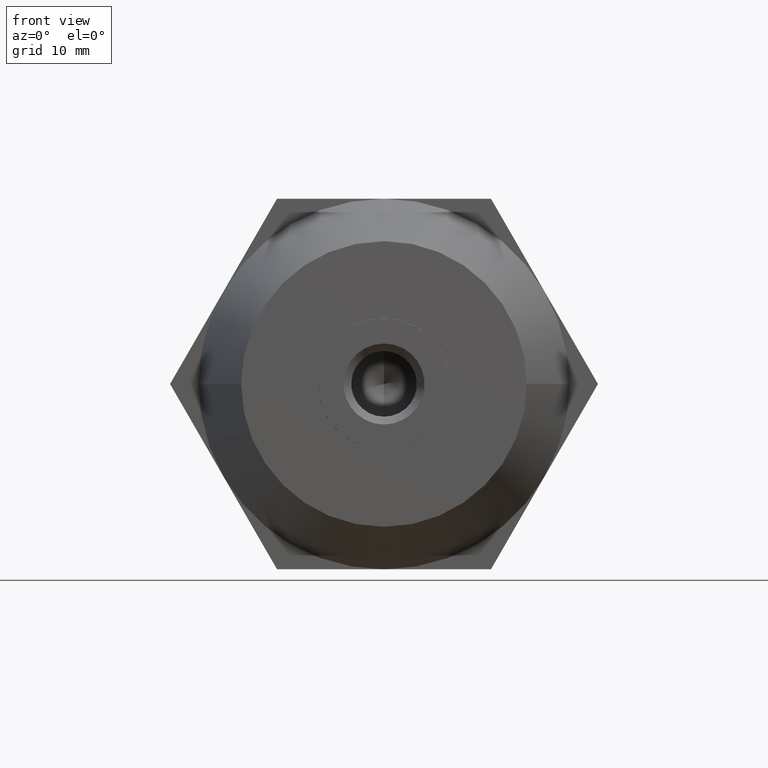
[diagram: clean part render]
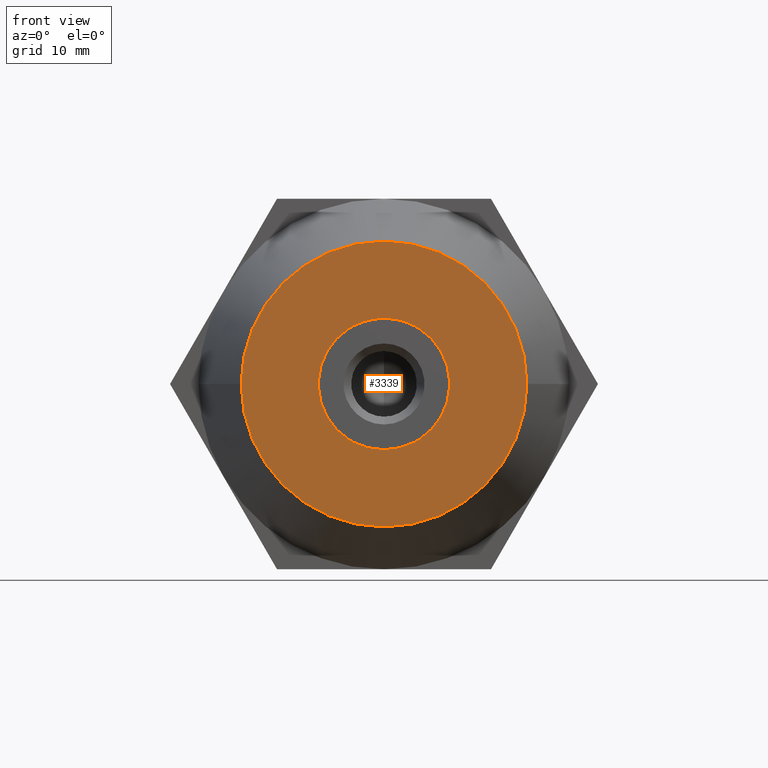
[diagram: same view with one face highlighted and labeled with its STEP entity id]
A machine part, front view. The second image highlights one B-rep face of the part: STEP entity #3339.
In plain terms, the highlighted planar face has unit normal (0, -1, 0).
Its self-contained STEP definition (entity closure, byte-faithful):
#76 = VECTOR ( 'NONE', #3702, 1000.000000000000000 ) ;
#99 = DIRECTION ( 'NONE',  ( -1.000000000000000000, -1.875376730785737500E-016, 0.0000000000000000000 ) ) ;
#116 = CARTESIAN_POINT ( 'NONE',  ( -8.500000000000000000, -30.00000000000000000, 0.0000000000000000000 ) ) ;
#123 = CARTESIAN_POINT ( 'NONE',  ( 1.042174426074395900E-015, -30.00000000000000000, 0.0000000000000000000 ) ) ;
#177 = DIRECTION ( 'NONE',  ( -1.224646799147352000E-016, 1.000000000000000000, -0.0000000000000000000 ) ) ;
#188 = EDGE_LOOP ( 'NONE', ( #243, #850, #2855, #3310, #1189, #2656, #902, #977, #687, #1395, #2912, #1054, #1716 ) ) ;
#227 = VERTEX_POINT ( 'NONE', #1352 ) ;
#243 = ORIENTED_EDGE ( 'NONE', *, *, #2631, .T. ) ;
#262 = CIRCLE ( 'NONE', #1392, 8.509999999999999800 ) ;
#263 = VERTEX_POINT ( 'NONE', #1041 ) ;
#320 = VERTEX_POINT ( 'NONE', #2023 ) ;
#397 = AXIS2_PLACEMENT_3D ( 'NONE', #3570, #177, #1112 ) ;
#421 = AXIS2_PLACEMENT_3D ( 'NONE', #3440, #990, #2211 ) ;
#440 = VERTEX_POINT ( 'NONE', #3892 ) ;
#497 = VECTOR ( 'NONE', #2770, 1000.000000000000000 ) ;
#511 = VERTEX_POINT ( 'NONE', #521 ) ;
#521 = CARTESIAN_POINT ( 'NONE',  ( 3.892823573006059900, -30.00000000000000000, 7.567431838440859900 ) ) ;
#530 = DIRECTION ( 'NONE',  ( 1.000000000000000000, 0.0000000000000000000, -1.776356839400250500E-015 ) ) ;
#631 = VERTEX_POINT ( 'NONE', #3664 ) ;
#677 = VERTEX_POINT ( 'NONE', #878 ) ;
#687 = ORIENTED_EDGE ( 'NONE', *, *, #3582, .T. ) ;
#701 = CARTESIAN_POINT ( 'NONE',  ( -9.625000000000000000, -30.00000000000000000, 15.37195091717380000 ) ) ;
#759 = VERTEX_POINT ( 'NONE', #1194 ) ;
#808 = VERTEX_POINT ( 'NONE', #3045 ) ;
#850 = ORIENTED_EDGE ( 'NONE', *, *, #2053, .T. ) ;
#878 = CARTESIAN_POINT ( 'NONE',  ( 4.607176426993880200, -30.00000000000000000, -7.155000025894629800 ) ) ;
#902 = ORIENTED_EDGE ( 'NONE', *, *, #2890, .T. ) ;
#921 = CARTESIAN_POINT ( 'NONE',  ( 1.042174426074395900E-015, -30.00000000000000000, 0.0000000000000000000 ) ) ;
#930 = DIRECTION ( 'NONE',  ( 0.8660254037844387100, 1.060575238724905700E-016, -0.4999999999999998900 ) ) ;
#977 = ORIENTED_EDGE ( 'NONE', *, *, #1871, .T. ) ;
#990 = DIRECTION ( 'NONE',  ( -1.224646799147352000E-016, 1.000000000000000000, 0.0000000000000000000 ) ) ;
#1041 = CARTESIAN_POINT ( 'NONE',  ( -4.607176426993929900, -30.00000000000000000, 7.155000025894589800 ) ) ;
#1054 = ORIENTED_EDGE ( 'NONE', *, *, #1908, .T. ) ;
#1112 = DIRECTION ( 'NONE',  ( 1.000000000000000000, 0.0000000000000000000, -2.664535259100375700E-015 ) ) ;
#1172 = DIRECTION ( 'NONE',  ( 0.8660254037844387100, 1.060575238724905700E-016, 0.4999999999999998900 ) ) ;
#1184 = AXIS2_PLACEMENT_3D ( 'NONE', #921, #3673, #530 ) ;
#1189 = ORIENTED_EDGE ( 'NONE', *, *, #2512, .T. ) ;
#1194 = CARTESIAN_POINT ( 'NONE',  ( -18.49999999999999300, -30.00000000000000400, 0.0000000000000000000 ) ) ;
#1208 = CIRCLE ( 'NONE', #421, 18.50000000000000000 ) ;
#1230 = DIRECTION ( 'NONE',  ( 1.224646799147352000E-016, -1.000000000000000000, 0.0000000000000000000 ) ) ;
#1238 = DIRECTION ( 'NONE',  ( -1.224646799147352000E-016, 1.000000000000000000, -0.0000000000000000000 ) ) ;
#1309 = CARTESIAN_POINT ( 'NONE',  ( 1.042174426074395900E-015, -30.00000000000000000, 0.0000000000000000000 ) ) ;
#1316 = CIRCLE ( 'NONE', #3623, 18.50000000000000000 ) ;
#1346 = VERTEX_POINT ( 'NONE', #3653 ) ;
#1352 = CARTESIAN_POINT ( 'NONE',  ( 3.892823573006124700, -30.00000000000000000, -7.567431838440829700 ) ) ;
#1392 = AXIS2_PLACEMENT_3D ( 'NONE', #3560, #2591, #2444 ) ;
#1394 = EDGE_CURVE ( 'NONE', #227, #1913, #3739, .T. ) ;
#1395 = ORIENTED_EDGE ( 'NONE', *, *, #2445, .T. ) ;
#1399 = CARTESIAN_POINT ( 'NONE',  ( -3.892823573006150000, -30.00000000000000000, -7.567431838440819900 ) ) ;
#1407 = AXIS2_PLACEMENT_3D ( 'NONE', #1309, #2250, #2870 ) ;
#1431 = ORIENTED_EDGE ( 'NONE', *, *, #2107, .F. ) ;
#1489 = VERTEX_POINT ( 'NONE', #2138 ) ;
#1552 = CARTESIAN_POINT ( 'NONE',  ( -9.625000000000000000, -30.00000000000000000, -15.37195091717380000 ) ) ;
#1585 = DIRECTION ( 'NONE',  ( 1.000000000000000000, 0.0000000000000000000, 0.0000000000000000000 ) ) ;
#1638 = AXIS2_PLACEMENT_3D ( 'NONE', #2178, #1238, #1585 ) ;
#1659 = VECTOR ( 'NONE', #1172, 1000.000000000000000 ) ;
#1663 = FACE_OUTER_BOUND ( 'NONE', #3821, .T. ) ;
#1667 = DIRECTION ( 'NONE',  ( -1.224646799147352000E-016, 1.000000000000000000, -0.0000000000000000000 ) ) ;
#1716 = ORIENTED_EDGE ( 'NONE', *, *, #2205, .T. ) ;
#1867 = DIRECTION ( 'NONE',  ( 1.000000000000000000, 0.0000000000000000000, 0.0000000000000000000 ) ) ;
#1871 = EDGE_CURVE ( 'NONE', #2185, #1346, #2955, .T. ) ;
#1895 = CARTESIAN_POINT ( 'NONE',  ( 8.500000000000000000, -30.00000000000000000, 9.544116274330180600E-015 ) ) ;
#1908 = EDGE_CURVE ( 'NONE', #1489, #808, #1909, .T. ) ;
#1909 = CIRCLE ( 'NONE', #397, 8.509999999999999800 ) ;
#1913 = VERTEX_POINT ( 'NONE', #1399 ) ;
#1927 = CARTESIAN_POINT ( 'NONE',  ( -4.607176426993850000, -30.00000000000000000, -7.155000025894639600 ) ) ;
#2023 = CARTESIAN_POINT ( 'NONE',  ( 4.607176426993929900, -30.00000000000000000, 7.155000025894589800 ) ) ;
#2053 = EDGE_CURVE ( 'NONE', #320, #631, #3047, .T. ) ;
#2107 = EDGE_CURVE ( 'NONE', #759, #440, #1316, .T. ) ;
#2138 = CARTESIAN_POINT ( 'NONE',  ( -3.892823573006065200, -30.00000000000000000, 7.567431838440859900 ) ) ;
#2149 = DIRECTION ( 'NONE',  ( -1.224646799147352000E-016, 1.000000000000000000, -0.0000000000000000000 ) ) ;
#2178 = CARTESIAN_POINT ( 'NONE',  ( 1.042174426074395900E-015, -30.00000000000000000, 0.0000000000000000000 ) ) ;
#2185 = VERTEX_POINT ( 'NONE', #1927 ) ;
#2205 = EDGE_CURVE ( 'NONE', #808, #511, #2694, .T. ) ;
#2211 = DIRECTION ( 'NONE',  ( -1.000000000000000000, -1.875376730785737500E-016, 0.0000000000000000000 ) ) ;
#2250 = DIRECTION ( 'NONE',  ( -1.224646799147352000E-016, 1.000000000000000000, -0.0000000000000000000 ) ) ;
#2273 = CIRCLE ( 'NONE', #2606, 8.509999999999999800 ) ;
#2301 = ORIENTED_EDGE ( 'NONE', *, *, #3599, .F. ) ;
#2353 = DIRECTION ( 'NONE',  ( -0.8660254037844387100, -1.060575238724905700E-016, 0.4999999999999998900 ) ) ;
#2444 = DIRECTION ( 'NONE',  ( 1.000000000000000000, 0.0000000000000000000, 0.0000000000000000000 ) ) ;
#2445 = EDGE_CURVE ( 'NONE', #3199, #263, #262, .T. ) ;
#2455 = LINE ( 'NONE', #3935, #1659 ) ;
#2511 = LINE ( 'NONE', #1895, #76 ) ;
#2512 = EDGE_CURVE ( 'NONE', #677, #227, #3137, .T. ) ;
#2565 = DIRECTION ( 'NONE',  ( 1.000000000000000000, 0.0000000000000000000, 0.0000000000000000000 ) ) ;
#2574 = EDGE_CURVE ( 'NONE', #631, #3924, #2511, .T. ) ;
#2591 = DIRECTION ( 'NONE',  ( -1.224646799147352000E-016, 1.000000000000000000, -0.0000000000000000000 ) ) ;
#2606 = AXIS2_PLACEMENT_3D ( 'NONE', #2788, #2149, #1867 ) ;
#2631 = EDGE_CURVE ( 'NONE', #511, #320, #3528, .T. ) ;
#2656 = ORIENTED_EDGE ( 'NONE', *, *, #1394, .T. ) ;
#2669 = AXIS2_PLACEMENT_3D ( 'NONE', #3127, #1230, #3378 ) ;
#2694 = CIRCLE ( 'NONE', #1407, 8.509999999999999800 ) ;
#2698 = CARTESIAN_POINT ( 'NONE',  ( -18.12500000000000000, -30.00000000000000000, 0.6495190528383209000 ) ) ;
#2770 = DIRECTION ( 'NONE',  ( -0.8660254037844387100, -1.060575238724905700E-016, -0.4999999999999998900 ) ) ;
#2788 = CARTESIAN_POINT ( 'NONE',  ( 1.042174426074395900E-015, -30.00000000000000000, 0.0000000000000000000 ) ) ;
#2844 = DIRECTION ( 'NONE',  ( 0.0000000000000000000, 0.0000000000000000000, 1.000000000000000000 ) ) ;
#2855 = ORIENTED_EDGE ( 'NONE', *, *, #2574, .T. ) ;
#2870 = DIRECTION ( 'NONE',  ( 1.000000000000000000, 0.0000000000000000000, 0.0000000000000000000 ) ) ;
#2890 = EDGE_CURVE ( 'NONE', #1913, #2185, #3194, .T. ) ;
#2912 = ORIENTED_EDGE ( 'NONE', *, *, #3810, .T. ) ;
#2955 = CIRCLE ( 'NONE', #3679, 8.509999999999999800 ) ;
#3045 = CARTESIAN_POINT ( 'NONE',  ( -3.851859888774471700E-031, -30.00000000000000000, 8.509999999999999800 ) ) ;
#3047 = CIRCLE ( 'NONE', #1184, 8.509999999999999800 ) ;
#3062 = PLANE ( 'NONE',  #2669 ) ;
#3065 = CARTESIAN_POINT ( 'NONE',  ( 8.500000000000000000, -30.00000000000000000, -0.4124318125462934600 ) ) ;
#3087 = CARTESIAN_POINT ( 'NONE',  ( 7.347880794884119900E-015, -30.00000000000000000, 0.0000000000000000000 ) ) ;
#3127 = CARTESIAN_POINT ( 'NONE',  ( -18.50000000000000000, -30.00000000000000000, 0.0000000000000000000 ) ) ;
#3137 = LINE ( 'NONE', #1552, #497 ) ;
#3194 = LINE ( 'NONE', #2698, #3829 ) ;
#3199 = VERTEX_POINT ( 'NONE', #3669 ) ;
#3290 = EDGE_CURVE ( 'NONE', #3924, #677, #2273, .T. ) ;
#3310 = ORIENTED_EDGE ( 'NONE', *, *, #3290, .T. ) ;
#3339 = ADVANCED_FACE ( 'NONE', ( #1663, #3439 ), #3062, .T. ) ;
#3378 = DIRECTION ( 'NONE',  ( 1.000000000000000000, 1.224646799147352000E-016, 0.0000000000000000000 ) ) ;
#3427 = VECTOR ( 'NONE', #930, 1000.000000000000000 ) ;
#3439 = FACE_BOUND ( 'NONE', #188, .T. ) ;
#3440 = CARTESIAN_POINT ( 'NONE',  ( 7.347880794884119900E-015, -30.00000000000000000, 0.0000000000000000000 ) ) ;
#3461 = DIRECTION ( 'NONE',  ( -1.224646799147352000E-016, 1.000000000000000000, 0.0000000000000000000 ) ) ;
#3528 = LINE ( 'NONE', #701, #3427 ) ;
#3560 = CARTESIAN_POINT ( 'NONE',  ( 1.042174426074395900E-015, -30.00000000000000000, 0.0000000000000000000 ) ) ;
#3570 = CARTESIAN_POINT ( 'NONE',  ( 1.042174426074395900E-015, -30.00000000000000000, 0.0000000000000000000 ) ) ;
#3582 = EDGE_CURVE ( 'NONE', #1346, #3199, #3619, .T. ) ;
#3599 = EDGE_CURVE ( 'NONE', #440, #759, #1208, .T. ) ;
#3619 = LINE ( 'NONE', #116, #3671 ) ;
#3623 = AXIS2_PLACEMENT_3D ( 'NONE', #3087, #3461, #99 ) ;
#3653 = CARTESIAN_POINT ( 'NONE',  ( -8.500000000000000000, -30.00000000000000000, -0.4124318125461740000 ) ) ;
#3664 = CARTESIAN_POINT ( 'NONE',  ( 8.500000000000000000, -30.00000000000000000, 0.4124318125462754800 ) ) ;
#3669 = CARTESIAN_POINT ( 'NONE',  ( -8.500000000000000000, -30.00000000000000000, 0.4124318125461740000 ) ) ;
#3671 = VECTOR ( 'NONE', #2844, 1000.000000000000000 ) ;
#3673 = DIRECTION ( 'NONE',  ( -1.224646799147352000E-016, 1.000000000000000000, -0.0000000000000000000 ) ) ;
#3679 = AXIS2_PLACEMENT_3D ( 'NONE', #123, #1667, #2565 ) ;
#3702 = DIRECTION ( 'NONE',  ( 3.534857879381550100E-016, 4.328952387425414700E-032, -1.000000000000000000 ) ) ;
#3739 = CIRCLE ( 'NONE', #1638, 8.509999999999999800 ) ;
#3810 = EDGE_CURVE ( 'NONE', #263, #1489, #2455, .T. ) ;
#3821 = EDGE_LOOP ( 'NONE', ( #1431, #2301 ) ) ;
#3829 = VECTOR ( 'NONE', #2353, 1000.000000000000000 ) ;
#3892 = CARTESIAN_POINT ( 'NONE',  ( 18.50000000000000700, -29.99999999999999600, 2.602374448188125800E-015 ) ) ;
#3924 = VERTEX_POINT ( 'NONE', #3065 ) ;
#3935 = CARTESIAN_POINT ( 'NONE',  ( -18.12500000000000000, -30.00000000000000000, -0.6495190528383290000 ) ) ;